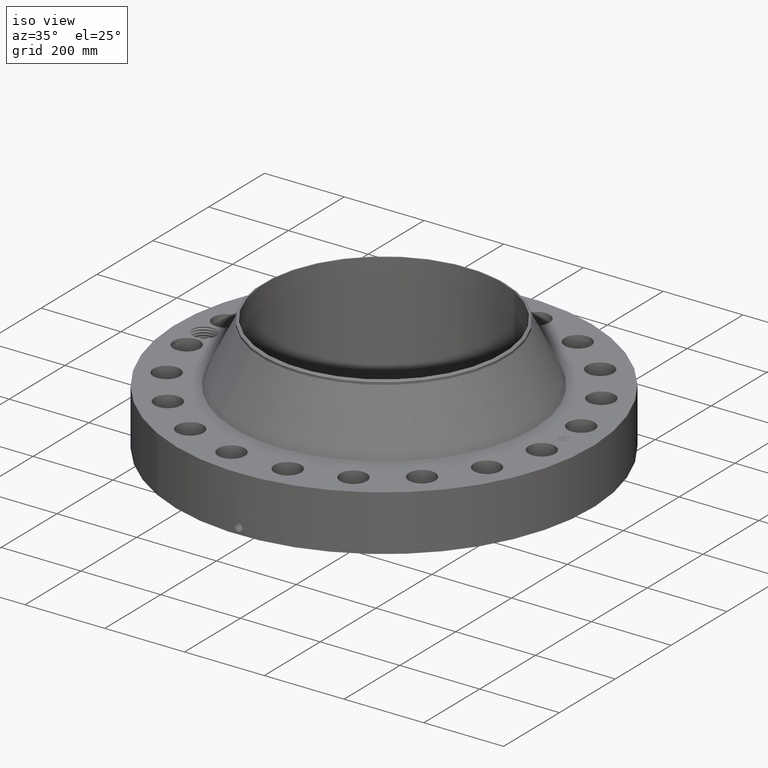
[diagram: clean part render]
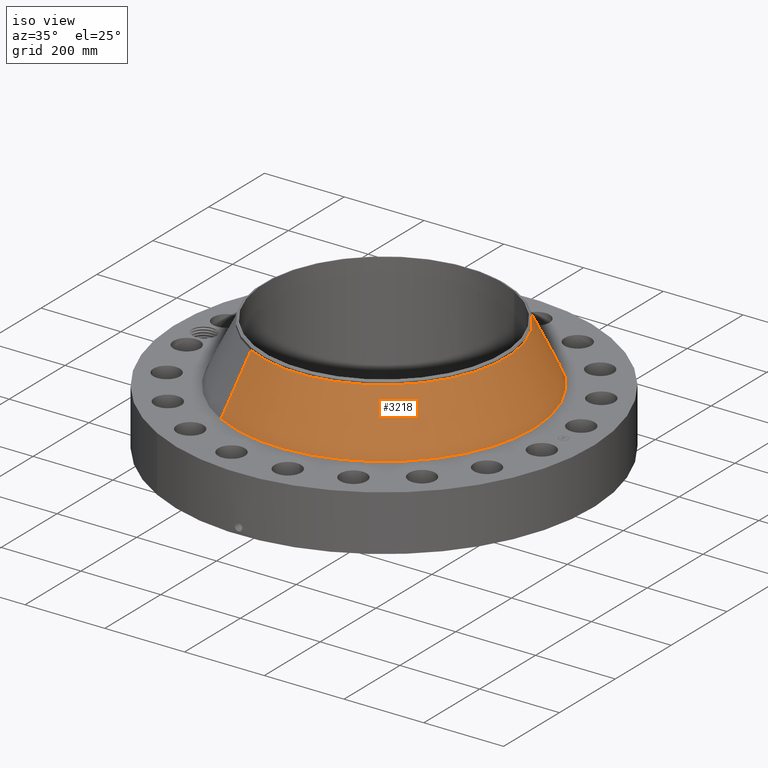
[diagram: same view with one face highlighted and labeled with its STEP entity id]
A machine part, iso view. The second image highlights one B-rep face of the part: STEP entity #3218.
In plain terms, the highlighted conical surface has half-angle 26.024 deg.
Its self-contained STEP definition (entity closure, byte-faithful):
#2524=AXIS2_PLACEMENT_3D('Circle Axis2P3D',#2522,#2523,$) ;
#3191=AXIS2_PLACEMENT_3D('Cone Axis2P3D',#3188,#3189,#3190) ;
#3202=AXIS2_PLACEMENT_3D('Circle Axis2P3D',#3200,#3201,$) ;
#2519=CARTESIAN_POINT('Vertex',(7.0557613534,12.9154845247,5.81735044576)) ;
#2522=CARTESIAN_POINT('Axis2P3D Location',(0.,0.,5.81735044576)) ;
#2526=CARTESIAN_POINT('Vertex',(-7.0557613534,-12.9154845247,5.81735044576)) ;
#3188=CARTESIAN_POINT('Axis2P3D Location',(0.,0.,11.3823672285)) ;
#3193=CARTESIAN_POINT('Line Origine',(6.40443390834,11.7232376337,8.59985883712)) ;
#3197=CARTESIAN_POINT('Vertex',(5.75310646327,10.5309907427,11.3823672285)) ;
#3200=CARTESIAN_POINT('Axis2P3D Location',(0.,0.,11.3823672285)) ;
#3204=CARTESIAN_POINT('Vertex',(-5.75310646327,-10.5309907427,11.3823672285)) ;
#3207=CARTESIAN_POINT('Line Origine',(-6.40443390834,-11.7232376337,8.59985883712)) ;
#2523=DIRECTION('Axis2P3D Direction',(0.,0.,-0.0393700787402)) ;
#3189=DIRECTION('Axis2P3D Direction',(0.,0.,-0.0393700787402)) ;
#3190=DIRECTION('Axis2P3D XDirection',(-0.0188750212049,-0.0345504945626,0.)) ;
#3194=DIRECTION('Vector Direction',(0.00828134544355,0.0151589011537,-0.0353783851167)) ;
#3201=DIRECTION('Axis2P3D Direction',(0.,0.,-0.0393700787402)) ;
#3208=DIRECTION('Vector Direction',(-0.00828134544355,-0.0151589011537,-0.0353783851167)) ;
#3195=VECTOR('Line Direction',#3194,0.0393700787402) ;
#3209=VECTOR('Line Direction',#3208,0.0393700787402) ;
#3213=ORIENTED_EDGE('',*,*,#2528,.F.) ;
#3214=ORIENTED_EDGE('',*,*,#3199,.T.) ;
#3215=ORIENTED_EDGE('',*,*,#3206,.T.) ;
#3216=ORIENTED_EDGE('',*,*,#3211,.F.) ;
#3218=ADVANCED_FACE('PartBody',(#3217),#3192,.T.) ;
#2525=CIRCLE('generated circle',#2524,14.7171161844) ;
#3203=CIRCLE('generated circle',#3202,12.) ;
#3192=CONICAL_SURFACE('Cone',#3191,12.,0.454203028149) ;
#2528=EDGE_CURVE('',#2520,#2527,#2525,.T.) ;
#3199=EDGE_CURVE('',#2520,#3198,#3196,.F.) ;
#3206=EDGE_CURVE('',#3198,#3205,#3203,.T.) ;
#3211=EDGE_CURVE('',#2527,#3205,#3210,.F.) ;
#3212=EDGE_LOOP('',(#3213,#3214,#3215,#3216)) ;
#3217=FACE_OUTER_BOUND('',#3212,.T.) ;
#3196=LINE('Line',#3193,#3195) ;
#3210=LINE('Line',#3207,#3209) ;
#2520=VERTEX_POINT('',#2519) ;
#2527=VERTEX_POINT('',#2526) ;
#3198=VERTEX_POINT('',#3197) ;
#3205=VERTEX_POINT('',#3204) ;